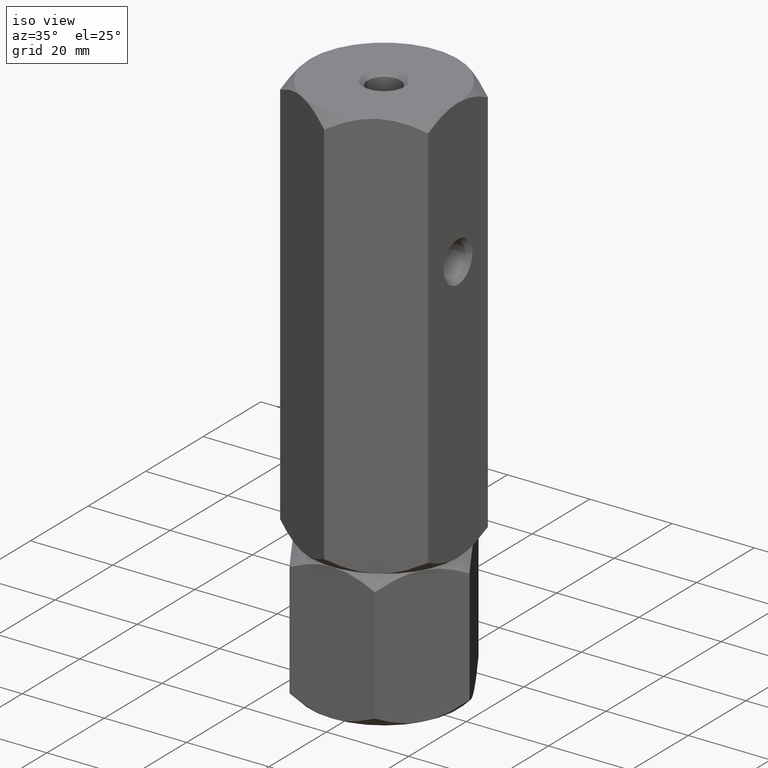
[diagram: clean part render]
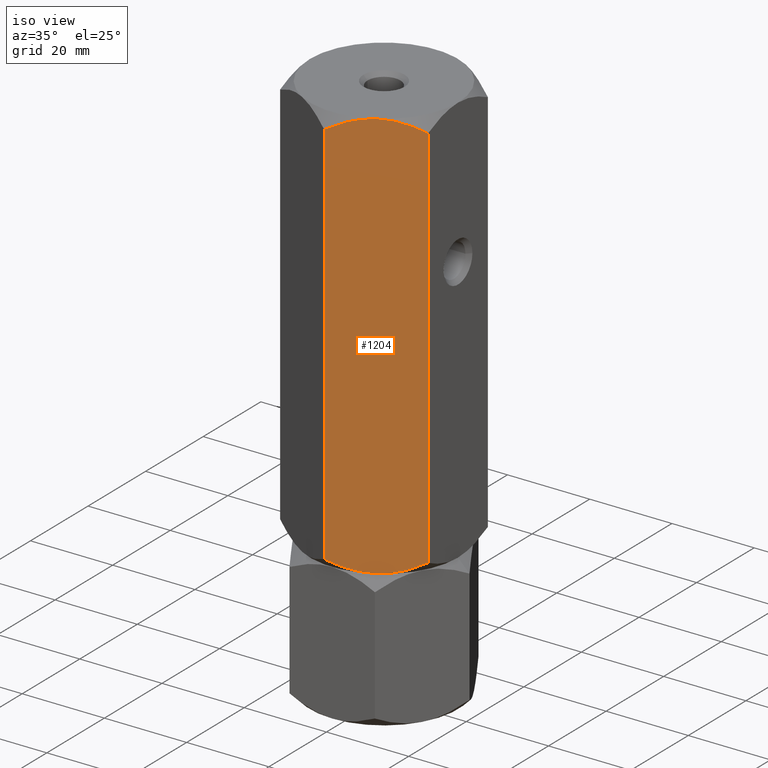
[diagram: same view with one face highlighted and labeled with its STEP entity id]
A machine part, iso view. The second image highlights one B-rep face of the part: STEP entity #1204.
In plain terms, the highlighted planar face has unit normal (-0.5, 0.866, 0).
Its self-contained STEP definition (entity closure, byte-faithful):
#17 = CARTESIAN_POINT ( 'NONE',  ( -3.379014044959083873E-15, -20.78460969082652809, 36.11794302415981406 ) ) ;
#67 = EDGE_CURVE ( 'NONE', #1255, #365, #192, .T. ) ;
#70 = CARTESIAN_POINT ( 'NONE',  ( 7.415748492146449600, -16.50312530264321609, 133.2463864432151297 ) ) ;
#71 = DIRECTION ( 'NONE',  ( -0.4999999999999996114, 0.8660254037844388186, 0.000000000000000000 ) ) ;
#77 = LINE ( 'NONE', #419, #1643 ) ;
#158 = AXIS2_PLACEMENT_3D ( 'NONE', #377, #71, #212 ) ;
#169 = EDGE_LOOP ( 'NONE', ( #237, #640, #1364, #963, #1895, #1697 ) ) ;
#192 = B_SPLINE_CURVE_WITH_KNOTS ( 'NONE', 3,
 ( #1001, #1950, #880, #1631, #545, #1781, #70, #530, #1958, #1161 ),
 .UNSPECIFIED., .F., .F.,
 ( 4, 2, 2, 2, 4 ),
 ( 2.544307986837308371E-07, 0.005386537354063076870, 0.008079678815695273339, 0.009426249546511372007, 0.01077282027732746894 ),
 .UNSPECIFIED. ) ;
#212 = DIRECTION ( 'NONE',  ( -0.8660254037844388186, -0.4999999999999996114, 0.000000000000000000 ) ) ;
#237 = ORIENTED_EDGE ( 'NONE', *, *, #67, .F. ) ;
#332 = VERTEX_POINT ( 'NONE', #17 ) ;
#365 = VERTEX_POINT ( 'NONE', #1884 ) ;
#369 = PLANE ( 'NONE',  #158 ) ;
#373 = CARTESIAN_POINT ( 'NONE',  ( 7.434539168300452694, -16.49227650070744744, 33.33333333333330017 ) ) ;
#377 = CARTESIAN_POINT ( 'NONE',  ( -2.998680872865238938E-15, -20.78460969082652809, 133.3333333333333144 ) ) ;
#419 = CARTESIAN_POINT ( 'NONE',  ( -2.998680872865238938E-15, -20.78460969082652809, 133.3333333333333144 ) ) ;
#427 = CARTESIAN_POINT ( 'NONE',  ( 15.13928418966203360, -12.04393988858691067, 132.0607586318289748 ) ) ;
#452 = DIRECTION ( 'NONE',  ( -0.000000000000000000, -0.000000000000000000, -1.000000000000000000 ) ) ;
#477 = CARTESIAN_POINT ( 'NONE',  ( 18.00000000000000355, -10.39230484541326938, 133.3333333333333144 ) ) ;
#530 = CARTESIAN_POINT ( 'NONE',  ( 8.209538469370119884, -16.04483044561310479, 133.3160004768592444 ) ) ;
#533 = CARTESIAN_POINT ( 'NONE',  ( 8.999999999999996447, -15.58845726811990140, 33.33333333333330017 ) ) ;
#545 = CARTESIAN_POINT ( 'NONE',  ( 5.858009779716792487, -17.40248616759157940, 132.9927702310780262 ) ) ;
#575 = B_SPLINE_CURVE_WITH_KNOTS ( 'NONE', 3,
 ( #958, #1591, #1344, #1810, #881, #1491, #1358, #872, #849, #1198 ),
 .UNSPECIFIED., .F., .F.,
 ( 4, 2, 2, 2, 4 ),
 ( 2.544307986796311447E-07, 0.005386537354063079472, 0.008079678815695276808, 0.009426249546511377211, 0.01077282027732747761 ),
 .UNSPECIFIED. ) ;
#634 = B_SPLINE_CURVE_WITH_KNOTS ( 'NONE', 3,
 ( #533, #373, #1803, #1822, #1991, #1183 ),
 .UNSPECIFIED., .F., .F.,
 ( 4, 2, 4 ),
 ( 0.01077282027732747761, 0.01612137750481874160, 0.02146993473231000732 ),
 .UNSPECIFIED. ) ;
#636 = VERTEX_POINT ( 'NONE', #1109 ) ;
#640 = ORIENTED_EDGE ( 'NONE', *, *, #1361, .T. ) ;
#730 = B_SPLINE_CURVE_WITH_KNOTS ( 'NONE', 3,
 ( #781, #1700, #1681, #427, #1075, #1064 ),
 .UNSPECIFIED., .F., .F.,
 ( 4, 2, 4 ),
 ( 0.01077282027732746894, 0.01612137750481873466, 0.02146993473230999691 ),
 .UNSPECIFIED. ) ;
#769 = CARTESIAN_POINT ( 'NONE',  ( -6.297340013485389316E-15, -20.78460969082653165, 130.5487236425067863 ) ) ;
#776 = CARTESIAN_POINT ( 'NONE',  ( 18.00000000000000355, -10.39230484541326938, 36.11794302415982116 ) ) ;
#781 = CARTESIAN_POINT ( 'NONE',  ( 8.999999999999994671, -15.58845726811989785, 133.3333333333333144 ) ) ;
#821 = VECTOR ( 'NONE', #452, 1000.000000000000000 ) ;
#849 = CARTESIAN_POINT ( 'NONE',  ( 9.394125676616221554, -15.36090870263097585, 33.33333333333330017 ) ) ;
#872 = CARTESIAN_POINT ( 'NONE',  ( 9.790461530629871234, -15.13208409062669801, 33.35066618980737019 ) ) ;
#880 = CARTESIAN_POINT ( 'NONE',  ( 2.854601888853805836, -19.13650452186756823, 132.0559502554434061 ) ) ;
#881 = CARTESIAN_POINT ( 'NONE',  ( 12.14199022028319774, -13.77442836864822517, 33.67389643558856704 ) ) ;
#958 = CARTESIAN_POINT ( 'NONE',  ( 18.00000000000000355, -10.39230484541326938, 36.11794302415982116 ) ) ;
#963 = ORIENTED_EDGE ( 'NONE', *, *, #1167, .F. ) ;
#1001 = CARTESIAN_POINT ( 'NONE',  ( -6.297340013485389316E-15, -20.78460969082653165, 130.5487236425067863 ) ) ;
#1027 = DIRECTION ( 'NONE',  ( -0.000000000000000000, -0.000000000000000000, -1.000000000000000000 ) ) ;
#1064 = CARTESIAN_POINT ( 'NONE',  ( 18.00000000000000355, -10.39230484541327115, 130.5487236425067863 ) ) ;
#1075 = CARTESIAN_POINT ( 'NONE',  ( 16.59030399953601531, -11.20619321075669816, 131.3626120078502595 ) ) ;
#1109 = CARTESIAN_POINT ( 'NONE',  ( 18.00000000000000355, -10.39230484541327115, 130.5487236425067863 ) ) ;
#1161 = CARTESIAN_POINT ( 'NONE',  ( 8.999999999999994671, -15.58845726811989785, 133.3333333333333144 ) ) ;
#1167 = EDGE_CURVE ( 'NONE', #1536, #1801, #575, .T. ) ;
#1183 = CARTESIAN_POINT ( 'NONE',  ( -3.379014044959083873E-15, -20.78460969082652809, 36.11794302415981406 ) ) ;
#1198 = CARTESIAN_POINT ( 'NONE',  ( 8.999999999999996447, -15.58845726811990140, 33.33333333333330017 ) ) ;
#1204 = ADVANCED_FACE ( 'NONE', ( #1632 ), #369, .F. ) ;
#1213 = CARTESIAN_POINT ( 'NONE',  ( 8.999999999999996447, -15.58845726811990140, 33.33333333333330017 ) ) ;
#1255 = VERTEX_POINT ( 'NONE', #769 ) ;
#1344 = CARTESIAN_POINT ( 'NONE',  ( 15.14539811114618750, -12.04041001437223102, 34.61071641122316578 ) ) ;
#1358 = CARTESIAN_POINT ( 'NONE',  ( 10.58425150785353885, -14.67378923359658494, 33.42028022345144933 ) ) ;
#1361 = EDGE_CURVE ( 'NONE', #1255, #332, #77, .T. ) ;
#1364 = ORIENTED_EDGE ( 'NONE', *, *, #1662, .F. ) ;
#1491 = CARTESIAN_POINT ( 'NONE',  ( 10.97671975407794953, -14.44719758599054238, 33.47205593243187138 ) ) ;
#1536 = VERTEX_POINT ( 'NONE', #776 ) ;
#1591 = CARTESIAN_POINT ( 'NONE',  ( 16.58866960374795951, -11.20713682960488988, 35.30311103996820776 ) ) ;
#1631 = CARTESIAN_POINT ( 'NONE',  ( 5.097327296964715870, -17.84166640377631907, 132.7962477775043055 ) ) ;
#1632 = FACE_OUTER_BOUND ( 'NONE', #169, .T. ) ;
#1643 = VECTOR ( 'NONE', #1027, 1000.000000000000000 ) ;
#1662 = EDGE_CURVE ( 'NONE', #1801, #332, #634, .T. ) ;
#1681 = CARTESIAN_POINT ( 'NONE',  ( 12.10430252359947900, -13.79618737047371013, 133.0569374262117606 ) ) ;
#1697 = ORIENTED_EDGE ( 'NONE', *, *, #1823, .F. ) ;
#1700 = CARTESIAN_POINT ( 'NONE',  ( 10.56546083169953398, -14.68463803553235358, 133.3333333333332860 ) ) ;
#1781 = CARTESIAN_POINT ( 'NONE',  ( 7.023280245922038034, -16.72971695024925864, 133.1946107342347148 ) ) ;
#1801 = VERTEX_POINT ( 'NONE', #1213 ) ;
#1803 = CARTESIAN_POINT ( 'NONE',  ( 5.895697476400517445, -17.38072716576609622, 33.60972924045488952 ) ) ;
#1810 = CARTESIAN_POINT ( 'NONE',  ( 12.90267270303527525, -13.33524813246348018, 33.87041888916230903 ) ) ;
#1822 = CARTESIAN_POINT ( 'NONE',  ( 2.860715810337960185, -19.13297464765288325, 34.60590803483753319 ) ) ;
#1823 = EDGE_CURVE ( 'NONE', #365, #636, #730, .T. ) ;
#1883 = LINE ( 'NONE', #477, #821 ) ;
#1884 = CARTESIAN_POINT ( 'NONE',  ( 8.999999999999994671, -15.58845726811989785, 133.3333333333333144 ) ) ;
#1895 = ORIENTED_EDGE ( 'NONE', *, *, #2045, .F. ) ;
#1950 = CARTESIAN_POINT ( 'NONE',  ( 1.411330396252042485, -19.96977770663490048, 131.3635556266983428 ) ) ;
#1958 = CARTESIAN_POINT ( 'NONE',  ( 8.605874323383771340, -15.81600583360882872, 133.3333333333333428 ) ) ;
#1991 = CARTESIAN_POINT ( 'NONE',  ( 1.409696000463980914, -19.97072132548311174, 35.30405465881634797 ) ) ;
#2045 = EDGE_CURVE ( 'NONE', #636, #1536, #1883, .T. ) ;